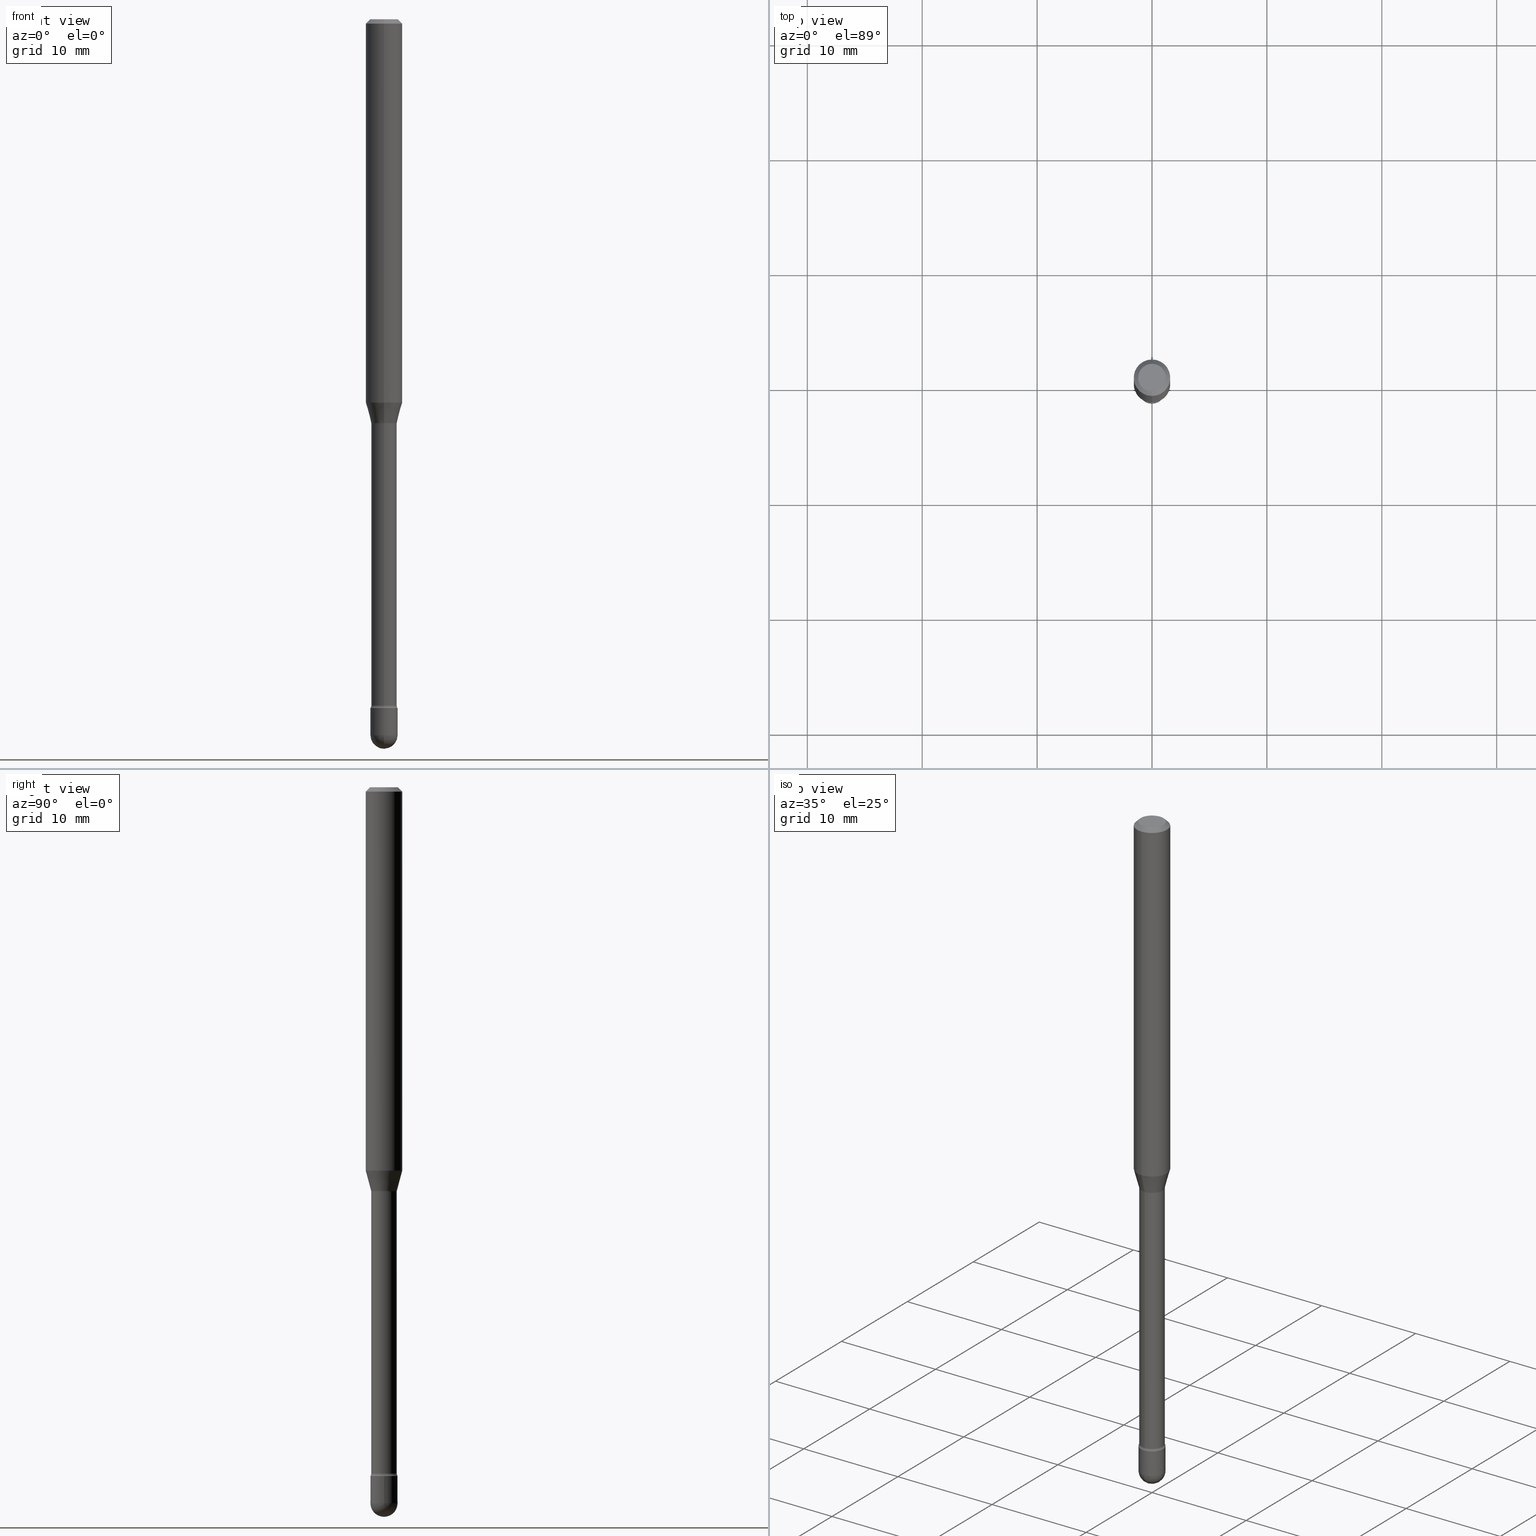
[diagram: canonical four-view strip — front | top / right | iso, engineering-drawing reading convention]
A machine part, canonical four-view strip (front | top / right | iso — engineering-drawing reading convention). The complete STEP part file that produces these views, byte-faithful:
ISO-10303-21;
HEADER;
FILE_DESCRIPTION (( 'STEP AP203' ),
    '1' );
FILE_NAME ('09553.STEP',
    '2024-04-10T00:38:46',
    ( '' ),
    ( '' ),
    'SwSTEP 2.0',
    'SolidWorks 2023',
    '' );
FILE_SCHEMA (( 'CONFIG_CONTROL_DESIGN' ));
ENDSEC;

DATA;
#1 = DIRECTION ( 'NONE',  ( -2.445440307037586333E-29, 3.491522151244508533E-15, 1.000000000000000000 ) ) ;
#2 = APPROVAL_STATUS ( 'not_yet_approved' ) ;
#3 = LINE ( 'NONE', #296, #60 ) ;
#4 = DIRECTION ( 'NONE',  ( -6.982962677686266711E-15, -1.000000000000000000, 3.491522151244508928E-15 ) ) ;
#5 = CARTESIAN_POINT ( 'NONE',  ( -3.087245492643025853E-16, -0.04421111260566880363, -1.382092501787272942 ) ) ;
#6 = DIRECTION ( 'NONE',  ( -2.445468806185136597E-29, 3.491481338843145583E-15, 1.000000000000000000 ) ) ;
#7 = CARTESIAN_POINT ( 'NONE',  ( 5.999957715975233376E-29, -8.566349464851658011E-15, -2.453500000000000014 ) ) ;
#8 = CARTESIAN_POINT ( 'NONE',  ( 3.389358108901824136E-29, -4.839105106536991295E-15, -1.385974787463811086 ) ) ;
#9 = EDGE_CURVE ( 'NONE', #556, #424, #3, .T. ) ;
#10 = FACE_OUTER_BOUND ( 'NONE', #170, .T. ) ;
#11 = AXIS2_PLACEMENT_3D ( 'NONE', #492, #386, #224 ) ;
#12 = APPROVAL_PERSON_ORGANIZATION ( #186, #463, #277 ) ;
#13 = DIMENSIONAL_EXPONENTS ( 1.000000000000000000, 0.000000000000000000, 0.000000000000000000, 0.000000000000000000, 0.000000000000000000, 0.000000000000000000, 0.000000000000000000 ) ;
#14 = CARTESIAN_POINT ( 'NONE',  ( 0.000000000000000000, 0.000000000000000000, 0.000000000000000000 ) ) ;
#15 = DIRECTION ( 'NONE',  ( -2.445440307037586333E-29, 3.491522151244508533E-15, 1.000000000000000000 ) ) ;
#16 = EDGE_CURVE ( 'NONE', #300, #294, #479, .T. ) ;
#17 = ADVANCED_FACE ( 'NONE', ( #306 ), #67, .T. ) ;
#18 = AXIS2_PLACEMENT_3D ( 'NONE', #14, #538, #285 ) ;
#19 = CIRCLE ( 'NONE', #367, 0.04421111260566398110 ) ;
#20 = ADVANCED_FACE ( 'NONE', ( #139 ), #297, .T. ) ;
#21 = DIRECTION ( 'NONE',  ( -6.982962677686265922E-15, -1.000000000000000000, 3.491522151244508533E-15 ) ) ;
#22 = DIRECTION ( 'NONE',  ( 2.445440307037585773E-29, -3.491522151244508533E-15, -1.000000000000000000 ) ) ;
#23 = DIRECTION ( 'NONE',  ( -6.982962677686265133E-15, -1.000000000000000000, 6.179098042681423534E-15 ) ) ;
#24 = CC_DESIGN_PERSON_AND_ORGANIZATION_ASSIGNMENT ( #103, #249, ( #373 ) ) ;
#25 = CARTESIAN_POINT ( 'NONE',  ( 3.204547738278631736E-16, 0.04369999999999193974, -2.351273030308291823 ) ) ;
#26 = CARTESIAN_POINT ( 'NONE',  ( 4.364351673553919652E-16, 0.06249999999999995143, -0.01500000000000030129 ) ) ;
#27 = VERTEX_POINT ( 'NONE', #135 ) ;
#28 = CARTESIAN_POINT ( 'NONE',  ( 4.170885858912370524E-16, 0.05869999999999190449, -2.351273030308291823 ) ) ;
#29 = AXIS2_PLACEMENT_3D ( 'NONE', #339, #503, #171 ) ;
#30 = EDGE_LOOP ( 'NONE', ( #381, #498, #269, #163 ) ) ;
#31 = CARTESIAN_POINT ( 'NONE',  ( 3.668160460556399609E-31, -5.237283226866791643E-17, -0.01500000000000008271 ) ) ;
#32 = SPHERICAL_SURFACE ( 'NONE', #318, 0.04649999999999995109 ) ;
#33 = ORIENTED_EDGE ( 'NONE', *, *, #323, .F. ) ;
#34 = ORIENTED_EDGE ( 'NONE', *, *, #126, .T. ) ;
#35 = CARTESIAN_POINT ( 'NONE',  ( -3.304023721283863841E-16, -0.04650000000000854145, -2.453500000000000014 ) ) ;
#36 = AXIS2_PLACEMENT_3D ( 'NONE', #477, #391, #71 ) ;
#37 = AXIS2_PLACEMENT_3D ( 'NONE', #432, #393, #178 ) ;
#38 = DIRECTION ( 'NONE',  ( -7.105427357601001070E-15, -1.000000000000000000, 0.000000000000000000 ) ) ;
#39 = DIRECTION ( 'NONE',  ( 1.000000000000000000, -6.982962677686267499E-15, 4.876176775795936353E-29 ) ) ;
#40 = FACE_OUTER_BOUND ( 'NONE', #474, .T. ) ;
#41 = DIRECTION ( 'NONE',  ( 6.982962677686265922E-15, 1.000000000000000000, -5.874941921858636379E-15 ) ) ;
#42 = EDGE_LOOP ( 'NONE', ( #337, #226, #412, #462, #34 ) ) ;
#43 = PERSON_AND_ORGANIZATION ( #548, #107 ) ;
#44 = ADVANCED_FACE ( 'NONE', ( #40 ), #147, .F. ) ;
#45 = FACE_OUTER_BOUND ( 'NONE', #541, .T. ) ;
#46 = ADVANCED_BREP_SHAPE_REPRESENTATION ( '09553', ( #162, #360, #221 ), #565 ) ;
#47 = CIRCLE ( 'NONE', #129, 0.01499999999999995955 ) ;
#48 = AXIS2_PLACEMENT_3D ( 'NONE', #167, #301, #76 ) ;
#49 = CARTESIAN_POINT ( 'NONE',  ( 4.440892098500948609E-16, 0.06249999999999544115, -1.313837444817705702 ) ) ;
#50 = DIRECTION ( 'NONE',  ( 1.000000000000000000, -6.982962677686260400E-15, 0.000000000000000000 ) ) ;
#51 = DIRECTION ( 'NONE',  ( -6.982962677686266711E-15, -1.000000000000000000, 0.000000000000000000 ) ) ;
#52 = DATE_AND_TIME ( #236, #286 ) ;
#53 = AXIS2_PLACEMENT_3D ( 'NONE', #545, #461, #102 ) ;
#54 = CC_DESIGN_APPROVAL ( #98, ( #180 ) ) ;
#55 = DIRECTION ( 'NONE',  ( -2.445440307037586333E-29, 3.491522151244508533E-15, 1.000000000000000000 ) ) ;
#56 = EDGE_CURVE ( 'NONE', #97, #382, #315, .T. ) ;
#57 = ORIENTED_EDGE ( 'NONE', *, *, #481, .T. ) ;
#58 = CARTESIAN_POINT ( 'NONE',  ( 3.212911044452487159E-29, -4.587292541715501865E-15, -1.313837444817705258 ) ) ;
#59 = CIRCLE ( 'NONE', #201, 0.04370000000000000273 ) ;
#60 = VECTOR ( 'NONE', #522, 39.37007874015748143 ) ;
#61 = CIRCLE ( 'NONE', #37, 0.01500000000000002720 ) ;
#62 = DIRECTION ( 'NONE',  ( -6.982962677686265922E-15, -1.000000000000000000, 6.251368406554355696E-15 ) ) ;
#63 = VERTEX_POINT ( 'NONE', #397 ) ;
#64 = CARTESIAN_POINT ( 'NONE',  ( 5.749897841166304022E-29, -8.209521868945201254E-15, -2.351273030308291823 ) ) ;
#65 = ORIENTED_EDGE ( 'NONE', *, *, #89, .F. ) ;
#66 = DIRECTION ( 'NONE',  ( -2.445440307037586333E-29, 3.491522151244508533E-15, 1.000000000000000000 ) ) ;
#67 = CONICAL_SURFACE ( 'NONE', #36, 0.06250000000000000000, 0.7853981633974483900 ) ;
#68 = DIRECTION ( 'NONE',  ( -6.982962677686266711E-15, -1.000000000000000000, 3.491522151244508928E-15 ) ) ;
#69 = AXIS2_PLACEMENT_3D ( 'NONE', #409, #374, #549 ) ;
#70 = DIRECTION ( 'NONE',  ( -2.445440307037586333E-29, 3.491522151244508533E-15, 1.000000000000000000 ) ) ;
#71 = DIRECTION ( 'NONE',  ( 6.982962677686265922E-15, 1.000000000000000000, -3.483106191921935554E-15 ) ) ;
#72 = VERTEX_POINT ( 'NONE', #392 ) ;
#73 = DIRECTION ( 'NONE',  ( -2.445468806185136597E-29, 3.491481338843145583E-15, 1.000000000000000000 ) ) ;
#74 = APPLICATION_CONTEXT ( 'configuration controlled 3d designs of mechanical parts and assemblies' ) ;
#75 = ORIENTED_EDGE ( 'NONE', *, *, #443, .T. ) ;
#76 = DIRECTION ( 'NONE',  ( 1.000000000000000000, -6.982962677686280121E-15, 0.000000000000000000 ) ) ;
#77 = EDGE_LOOP ( 'NONE', ( #562, #230, #377, #551 ) ) ;
#78 = ORIENTED_EDGE ( 'NONE', *, *, #122, .T. ) ;
#79 = CARTESIAN_POINT ( 'NONE',  ( 5.999957715975233376E-29, -8.566349464851658011E-15, -2.453500000000000014 ) ) ;
#80 = CIRCLE ( 'NONE', #407, 0.04649999999999999967 ) ;
#81 = COORDINATED_UNIVERSAL_TIME_OFFSET ( 5, 0, .BEHIND. ) ;
#82 = DIRECTION ( 'NONE',  ( 2.445440307037586333E-29, -3.491522151244508533E-15, -1.000000000000000000 ) ) ;
#83 = CC_DESIGN_PERSON_AND_ORGANIZATION_ASSIGNMENT ( #212, #302, ( #539 ) ) ;
#84 = CYLINDRICAL_SURFACE ( 'NONE', #415, 0.06250000000000000000 ) ;
#85 = EDGE_CURVE ( 'NONE', #63, #558, #47, .T. ) ;
#86 =( NAMED_UNIT ( * ) PLANE_ANGLE_UNIT ( ) SI_UNIT ( $, .RADIAN. ) );
#87 = CARTESIAN_POINT ( 'NONE',  ( -3.773273898774340269E-16, -0.04749999999999999362, 8.310220870163345248E-17 ) ) ;
#88 = VERTEX_POINT ( 'NONE', #5 ) ;
#89 = EDGE_CURVE ( 'NONE', #424, #410, #447, .T. ) ;
#90 = DIRECTION ( 'NONE',  ( 1.000000000000000000, -6.982962677686280121E-15, 0.000000000000000000 ) ) ;
#91 = CARTESIAN_POINT ( 'NONE',  ( -3.051554690148559469E-16, -0.04370000000000483914, -1.385974787463810864 ) ) ;
#92 = LINE ( 'NONE', #398, #401 ) ;
#93 = AXIS2_PLACEMENT_3D ( 'NONE', #191, #22, #194 ) ;
#94 = CONICAL_SURFACE ( 'NONE', #203, 0.04421111260566398110, 0.2617993877991501850 ) ;
#95 = ADVANCED_FACE ( 'NONE', ( #10 ), #321, .F. ) ;
#96 = DIRECTION ( 'NONE',  ( -6.982962677686265922E-15, -1.000000000000000000, 4.370956789862821150E-15 ) ) ;
#97 = VERTEX_POINT ( 'NONE', #454 ) ;
#98 = APPROVAL ( #353, 'UNSPECIFIED' ) ;
#99 = VECTOR ( 'NONE', #251, 39.37007874015749564 ) ;
#100 = ORIENTED_EDGE ( 'NONE', *, *, #217, .T. ) ;
#101 = CARTESIAN_POINT ( 'NONE',  ( 3.389318609801855919E-29, -4.839161671496296399E-15, -1.385974787463811086 ) ) ;
#102 = DIRECTION ( 'NONE',  ( -6.982962677686265922E-15, -1.000000000000000000, 3.491522151244508533E-15 ) ) ;
#103 = PERSON_AND_ORGANIZATION ( #548, #107 ) ;
#104 = FACE_OUTER_BOUND ( 'NONE', #471, .T. ) ;
#105 = EDGE_CURVE ( 'NONE', #382, #72, #511, .T. ) ;
#106 = AXIS2_PLACEMENT_3D ( 'NONE', #305, #532, #219 ) ;
#107 = ORGANIZATION ( 'UNSPECIFIED', 'UNSPECIFIED', '' ) ;
#108 = ORIENTED_EDGE ( 'NONE', *, *, #346, .T. ) ;
#109 = DIRECTION ( 'NONE',  ( -1.000000000000000000, 6.982962677686265922E-15, -4.883557194083111780E-29 ) ) ;
#110 = PERSON_AND_ORGANIZATION_ROLE ( 'creator' ) ;
#111 = ORIENTED_EDGE ( 'NONE', *, *, #547, .F. ) ;
#112 = ADVANCED_FACE ( 'NONE', ( #242 ), #372, .T. ) ;
#113 = CARTESIAN_POINT ( 'NONE',  ( 4.440892098500949595E-16, 0.06249999999999995837, -0.01500000000000030129 ) ) ;
#114 = ORIENTED_EDGE ( 'NONE', *, *, #245, .T. ) ;
#115 = ORIENTED_EDGE ( 'NONE', *, *, #330, .F. ) ;
#116 = DATE_AND_TIME ( #307, #514 ) ;
#117 = CARTESIAN_POINT ( 'NONE',  ( 5.999957715975233376E-29, -8.566349464851658011E-15, -2.453500000000000014 ) ) ;
#118 = EDGE_CURVE ( 'NONE', #322, #410, #496, .T. ) ;
#119 = ORIENTED_EDGE ( 'NONE', *, *, #330, .T. ) ;
#120 = FACE_OUTER_BOUND ( 'NONE', #304, .T. ) ;
#121 = VERTEX_POINT ( 'NONE', #146 ) ;
#122 = EDGE_CURVE ( 'NONE', #524, #501, #59, .T. ) ;
#123 = APPROVAL_ROLE ( '' ) ;
#124 = DIRECTION ( 'NONE',  ( -1.000000000000000000, 7.105427357601001070E-15, -4.926315508542082329E-29 ) ) ;
#125 = COORDINATED_UNIVERSAL_TIME_OFFSET ( 5, 0, .BEHIND. ) ;
#126 = EDGE_CURVE ( 'NONE', #322, #255, #405, .T. ) ;
#127 = SPHERICAL_SURFACE ( 'NONE', #383, 0.04649999999999995109 ) ;
#128 = ORIENTED_EDGE ( 'NONE', *, *, #500, .F. ) ;
#129 = AXIS2_PLACEMENT_3D ( 'NONE', #493, #399, #51 ) ;
#130 = TOROIDAL_SURFACE ( 'NONE', #376, 0.05870000000000011320, 0.01499999999999995955 ) ;
#131 = CARTESIAN_POINT ( 'NONE',  ( 5.771306382596922099E-29, -8.239895959669823433E-15, -2.359999999999999876 ) ) ;
#132 = APPROVAL_ROLE ( '' ) ;
#133 = DIRECTION ( 'NONE',  ( -6.982962677686265922E-15, -1.000000000000000000, 3.491522151244509322E-15 ) ) ;
#134 = DIRECTION ( 'NONE',  ( -2.445440307037586333E-29, 3.491522151244508533E-15, 1.000000000000000000 ) ) ;
#135 = CARTESIAN_POINT ( 'NONE',  ( 3.840629472727447874E-16, 0.04749999999999999362, -2.485923956665948360E-16 ) ) ;
#136 = CARTESIAN_POINT ( 'NONE',  ( -1.169113584055446105E-44, 1.669184350826100908E-30, 4.780733988912460139E-16 ) ) ;
#137 = ORIENTED_EDGE ( 'NONE', *, *, #234, .F. ) ;
#138 = CARTESIAN_POINT ( 'NONE',  ( 0.04649999999999999967, -8.727830476773153796E-15, -2.453500000000000014 ) ) ;
#139 = FACE_OUTER_BOUND ( 'NONE', #473, .T. ) ;
#140 = CIRCLE ( 'NONE', #69, 0.06250000000000000000 ) ;
#141 = AXIS2_PLACEMENT_3D ( 'NONE', #64, #459, #62 ) ;
#142 = CIRCLE ( 'NONE', #534, 0.06250000000000000000 ) ;
#143 = APPROVAL_DATE_TIME ( #436, #463 ) ;
#144 = EDGE_CURVE ( 'NONE', #158, #121, #499, .T. ) ;
#145 = VERTEX_POINT ( 'NONE', #563 ) ;
#146 = CARTESIAN_POINT ( 'NONE',  ( 3.304023721285041216E-16, 0.04649999999999173544, -2.360000000000000320 ) ) ;
#147 = TOROIDAL_SURFACE ( 'NONE', #370, 0.05870000000000011320, 0.01499999999999995955 ) ;
#148 = AXIS2_PLACEMENT_3D ( 'NONE', #313, #486, #435 ) ;
#149 = CC_DESIGN_APPROVAL ( #463, ( #373 ) ) ;
#150 = DIRECTION ( 'NONE',  ( -2.445468806185136877E-29, 3.491481338843145188E-15, 1.000000000000000000 ) ) ;
#151 = UNCERTAINTY_MEASURE_WITH_UNIT (LENGTH_MEASURE( 1.000000000000000082E-05 ), #189, 'distance_accuracy_value', 'NONE');
#152 = CARTESIAN_POINT ( 'NONE',  ( 3.247077645124690836E-16, 0.04649999999999176320, -2.360000000000000320 ) ) ;
#153 = PRODUCT_DEFINITION ( 'UNKNOWN', '', #373, #408 ) ;
#154 = DIRECTION ( 'NONE',  ( 6.982962677686265922E-15, 1.000000000000000000, -5.874941921858636379E-15 ) ) ;
#155 = LINE ( 'NONE', #333, #491 ) ;
#156 = ORIENTED_EDGE ( 'NONE', *, *, #437, .T. ) ;
#157 = AXIS2_PLACEMENT_3D ( 'NONE', #254, #215, #502 ) ;
#158 = VERTEX_POINT ( 'NONE', #25 ) ;
#159 = AXIS2_PLACEMENT_3D ( 'NONE', #282, #246, #195 ) ;
#160 = FACE_OUTER_BOUND ( 'NONE', #366, .T. ) ;
#161 = DIRECTION ( 'NONE',  ( 1.000000000000000000, -6.982962677686280121E-15, 0.000000000000000000 ) ) ;
#162 = MANIFOLD_SOLID_BREP ( 'Body-Move/Copy2[1]', #325 ) ;
#163 = ORIENTED_EDGE ( 'NONE', *, *, #553, .F. ) ;
#164 = ORIENTED_EDGE ( 'NONE', *, *, #184, .T. ) ;
#165 = VERTEX_POINT ( 'NONE', #113 ) ;
#166 = AXIS2_PLACEMENT_3D ( 'NONE', #28, #560, #506 ) ;
#167 = CARTESIAN_POINT ( 'NONE',  ( 5.999957715975233376E-29, -8.566349464851658011E-15, -2.453500000000000014 ) ) ;
#168 = AXIS2_PLACEMENT_3D ( 'NONE', #198, #209, #550 ) ;
#169 = CALENDAR_DATE ( 2024, 9, 4 ) ;
#170 = EDGE_LOOP ( 'NONE', ( #100, #119 ) ) ;
#171 = DIRECTION ( 'NONE',  ( -6.982962677686265922E-15, -1.000000000000000000, 4.370956789862821150E-15 ) ) ;
#172 = FACE_OUTER_BOUND ( 'NONE', #42, .T. ) ;
#173 = PERSON_AND_ORGANIZATION ( #548, #107 ) ;
#174 = PERSON_AND_ORGANIZATION ( #548, #107 ) ;
#175 = FACE_OUTER_BOUND ( 'NONE', #422, .T. ) ;
#176 = ORIENTED_EDGE ( 'NONE', *, *, #16, .F. ) ;
#177 = DATE_AND_TIME ( #270, #536 ) ;
#178 = DIRECTION ( 'NONE',  ( 7.105427357601001859E-15, 1.000000000000000000, 0.000000000000000000 ) ) ;
#179 = CIRCLE ( 'NONE', #48, 0.04649999999999999967 ) ;
#180 = SECURITY_CLASSIFICATION ( '', '', #413 ) ;
#181 = PERSON_AND_ORGANIZATION ( #548, #107 ) ;
#182 = LENGTH_MEASURE_WITH_UNIT ( LENGTH_MEASURE( 0.02539999999999999897 ), #237 );
#183 = CARTESIAN_POINT ( 'NONE',  ( 0.000000000000000000, 0.000000000000000000, 0.000000000000000000 ) ) ;
#184 = EDGE_CURVE ( 'NONE', #556, #294, #490, .T. ) ;
#185 = FACE_OUTER_BOUND ( 'NONE', #552, .T. ) ;
#186 = PERSON_AND_ORGANIZATION ( #548, #107 ) ;
#187 = AXIS2_PLACEMENT_3D ( 'NONE', #8, #1, #310 ) ;
#188 = DIRECTION ( 'NONE',  ( -2.445440307037586333E-29, 3.491522151244508533E-15, 1.000000000000000000 ) ) ;
#189 =( CONVERSION_BASED_UNIT ( 'INCH', #182 ) LENGTH_UNIT ( ) NAMED_UNIT ( #13 ) );
#190 = ADVANCED_FACE ( 'NONE', ( #120 ), #32, .T. ) ;
#191 = CARTESIAN_POINT ( 'NONE',  ( 3.316907271900976096E-16, 0.04749999999999999362, 3.181685052026860004E-17 ) ) ;
#192 = CARTESIAN_POINT ( 'NONE',  ( 3.105071755272217326E-16, 0.04369999999999515938, -1.385974787463811309 ) ) ;
#193 = PRODUCT_DEFINITION_SHAPE ( 'NONE', 'NONE',  #153 ) ;
#194 = DIRECTION ( 'NONE',  ( 6.982962677686265922E-15, 1.000000000000000000, -3.491522151244508533E-15 ) ) ;
#195 = DIRECTION ( 'NONE',  ( 1.000000000000000000, -6.982962677686265922E-15, 4.876176775795935793E-29 ) ) ;
#196 = CARTESIAN_POINT ( 'NONE',  ( -3.087245492643025853E-16, -0.04421111260566880363, -1.382092501787272942 ) ) ;
#197 = CARTESIAN_POINT ( 'NONE',  ( 2.023345621273164443E-45, -2.889258381243154427E-31, -8.274509348248068560E-17 ) ) ;
#198 = CARTESIAN_POINT ( 'NONE',  ( -4.098999091801499081E-16, -0.05870000000000484552, -1.385974787463810864 ) ) ;
#199 = ORIENTED_EDGE ( 'NONE', *, *, #352, .T. ) ;
#200 = EDGE_LOOP ( 'NONE', ( #213, #164, #433, #566, #65 ) ) ;
#201 = AXIS2_PLACEMENT_3D ( 'NONE', #101, #55, #404 ) ;
#202 = ORIENTED_EDGE ( 'NONE', *, *, #481, .F. ) ;
#203 = AXIS2_PLACEMENT_3D ( 'NONE', #414, #288, #23 ) ;
#204 = ORIENTED_EDGE ( 'NONE', *, *, #85, .T. ) ;
#205 = VECTOR ( 'NONE', #267, 39.37007874015748143 ) ;
#206 = DIRECTION ( 'NONE',  ( -2.445440307037586333E-29, 3.491522151244508533E-15, 1.000000000000000000 ) ) ;
#207 = DIRECTION ( 'NONE',  ( -2.445440307037586333E-29, 3.491522151244508533E-15, 1.000000000000000000 ) ) ;
#208 = CC_DESIGN_DATE_AND_TIME_ASSIGNMENT ( #518, #264, ( #180 ) ) ;
#209 = DIRECTION ( 'NONE',  ( -1.000000000000000000, 6.982962677686265922E-15, -4.883557194083112901E-29 ) ) ;
#210 = EDGE_CURVE ( 'NONE', #88, #97, #455, .T. ) ;
#211 = ORIENTED_EDGE ( 'NONE', *, *, #122, .F. ) ;
#212 = PERSON_AND_ORGANIZATION ( #548, #107 ) ;
#213 = ORIENTED_EDGE ( 'NONE', *, *, #9, .F. ) ;
#214 = DIRECTION ( 'NONE',  ( -6.982962677686265922E-15, -1.000000000000000000, 3.483106191921935554E-15 ) ) ;
#215 = DIRECTION ( 'NONE',  ( -2.445468806185136597E-29, 3.491481338843145583E-15, 1.000000000000000000 ) ) ;
#216 = ORIENTED_EDGE ( 'NONE', *, *, #16, .T. ) ;
#217 = EDGE_CURVE ( 'NONE', #27, #261, #232, .T. ) ;
#218 = AXIS2_PLACEMENT_3D ( 'NONE', #354, #361, #4 ) ;
#219 = DIRECTION ( 'NONE',  ( -6.982962677686265922E-15, -1.000000000000000000, 3.491522151244509322E-15 ) ) ;
#220 = LOCAL_TIME ( 20, 38, 46.00000000000000000, #238 ) ;
#221 = AXIS2_PLACEMENT_3D ( 'NONE', #390, #387, #484 ) ;
#222 = APPROVAL ( #2, 'UNSPECIFIED' ) ;
#223 = DIRECTION ( 'NONE',  ( 6.982962677686265133E-15, 1.000000000000000000, 0.000000000000000000 ) ) ;
#224 = DIRECTION ( 'NONE',  ( -6.982962677686266711E-15, -1.000000000000000000, 5.874941921858630857E-15 ) ) ;
#225 = CARTESIAN_POINT ( 'NONE',  ( 6.115660277085183893E-29, -8.725856043299847054E-15, -2.500000000000000000 ) ) ;
#226 = ORIENTED_EDGE ( 'NONE', *, *, #9, .T. ) ;
#227 = PERSON_AND_ORGANIZATION_ROLE ( 'creator' ) ;
#228 = EDGE_CURVE ( 'NONE', #255, #556, #179, .T. ) ;
#229 = CARTESIAN_POINT ( 'NONE',  ( 0.04649999999999999967, -8.564603724182234141E-15, -2.359999999999999876 ) ) ;
#230 = ORIENTED_EDGE ( 'NONE', *, *, #144, .T. ) ;
#231 = CC_DESIGN_DATE_AND_TIME_ASSIGNMENT ( #52, #244, ( #153 ) ) ;
#232 = CIRCLE ( 'NONE', #526, 0.04749999999999999362 ) ;
#233 = DIRECTION ( 'NONE',  ( 1.839019923739599526E-15, 0.2588190451025248473, 0.9659258262890670910 ) ) ;
#234 = EDGE_CURVE ( 'NONE', #63, #158, #334, .T. ) ;
#235 = DIRECTION ( 'NONE',  ( -6.982962677686265922E-15, -1.000000000000000000, 3.491522151244508533E-15 ) ) ;
#236 = CALENDAR_DATE ( 2024, 9, 4 ) ;
#237 =( LENGTH_UNIT ( ) NAMED_UNIT ( * ) SI_UNIT ( $, .METRE. ) );
#238 = COORDINATED_UNIVERSAL_TIME_OFFSET ( 5, 0, .BEHIND. ) ;
#239 = DIRECTION ( 'NONE',  ( 6.982962677686265922E-15, 1.000000000000000000, -3.483106191921935554E-15 ) ) ;
#240 = EDGE_CURVE ( 'NONE', #145, #165, #140, .T. ) ;
#241 = CIRCLE ( 'NONE', #11, 0.04649999999999999967 ) ;
#242 = FACE_OUTER_BOUND ( 'NONE', #200, .T. ) ;
#243 = ADVANCED_FACE ( 'NONE', ( #316 ), #395, .F. ) ;
#244 = DATE_TIME_ROLE ( 'creation_date' ) ;
#245 = EDGE_CURVE ( 'NONE', #63, #501, #396, .T. ) ;
#246 = DIRECTION ( 'NONE',  ( -2.438088387897960049E-29, 3.491481338843145188E-15, 1.000000000000000000 ) ) ;
#247 = AXIS2_PLACEMENT_3D ( 'NONE', #136, #134, #235 ) ;
#248 = CARTESIAN_POINT ( 'NONE',  ( 5.999957715975233376E-29, -8.566349464851658011E-15, -2.453500000000000014 ) ) ;
#249 = PERSON_AND_ORGANIZATION_ROLE ( 'design_supplier' ) ;
#250 = DIRECTION ( 'NONE',  ( 1.000000000000000000, -6.982962677686265922E-15, 4.883557194083112340E-29 ) ) ;
#251 = DIRECTION ( 'NONE',  ( -1.807323732225329350E-15, -0.2588190451025180194, 0.9659258262890689783 ) ) ;
#252 = ORIENTED_EDGE ( 'NONE', *, *, #217, .F. ) ;
#253 = ADVANCED_FACE ( 'NONE', ( #45 ), #482, .T. ) ;
#254 = CARTESIAN_POINT ( 'NONE',  ( 5.999957715975233376E-29, -8.566349464851658011E-15, -2.453500000000000014 ) ) ;
#255 = VERTEX_POINT ( 'NONE', #263 ) ;
#256 = AXIS2_PLACEMENT_3D ( 'NONE', #183, #388, #39 ) ;
#257 = CARTESIAN_POINT ( 'NONE',  ( -4.364351673553916201E-16, -0.06250000000000000000, 6.962935333440278959E-16 ) ) ;
#258 = CARTESIAN_POINT ( 'NONE',  ( 5.749897841166304022E-29, -8.209521868945201254E-15, -2.351273030308291823 ) ) ;
#259 = ORIENTED_EDGE ( 'NONE', *, *, #418, .T. ) ;
#260 = ORIENTED_EDGE ( 'NONE', *, *, #105, .T. ) ;
#261 = VERTEX_POINT ( 'NONE', #87 ) ;
#262 = CARTESIAN_POINT ( 'NONE',  ( -1.169113584055446105E-44, 1.669184350826100908E-30, 4.780733988912460139E-16 ) ) ;
#263 = CARTESIAN_POINT ( 'NONE',  ( 3.247077645124712036E-16, 0.04649999999999141626, -2.453500000000000458 ) ) ;
#264 = DATE_TIME_ROLE ( 'classification_date' ) ;
#265 = ORIENTED_EDGE ( 'NONE', *, *, #438, .F. ) ;
#266 = VECTOR ( 'NONE', #233, 39.37007874015748143 ) ;
#267 = DIRECTION ( 'NONE',  ( -2.445440307037586053E-29, 3.491522151244508533E-15, 1.000000000000000000 ) ) ;
#268 = AXIS2_PLACEMENT_3D ( 'NONE', #276, #317, #431 ) ;
#269 = ORIENTED_EDGE ( 'NONE', *, *, #240, .F. ) ;
#270 = CALENDAR_DATE ( 2024, 9, 4 ) ;
#271 = APPROVAL_DATE_TIME ( #116, #98 ) ;
#272 = DIRECTION ( 'NONE',  ( -1.000000000000000000, 6.982962677686265922E-15, -4.883557194083111780E-29 ) ) ;
#273 = ORIENTED_EDGE ( 'NONE', *, *, #497, .T. ) ;
#274 = APPROVAL_DATE_TIME ( #177, #222 ) ;
#275 = ADVANCED_FACE ( 'NONE', ( #351 ), #439, .T. ) ;
#276 = CARTESIAN_POINT ( 'NONE',  ( 3.379824711925015009E-29, -4.825606585059204561E-15, -1.382092501787273164 ) ) ;
#277 = APPROVAL_ROLE ( '' ) ;
#278 = DIRECTION ( 'NONE',  ( -2.445440307037586053E-29, 3.491522151244508533E-15, 1.000000000000000000 ) ) ;
#279 = CIRCLE ( 'NONE', #148, 0.04649999999999999967 ) ;
#280 = CARTESIAN_POINT ( 'NONE',  ( 3.668160460556399609E-31, -5.237283226866791643E-17, -0.01500000000000008271 ) ) ;
#281 = PLANE ( 'NONE',  #309 ) ;
#282 = CARTESIAN_POINT ( 'NONE',  ( 5.771306382596922099E-29, -8.239895959669823433E-15, -2.359999999999999876 ) ) ;
#283 = CLOSED_SHELL ( 'NONE', ( #451, #543, #452, #20, #504, #469, #275, #253, #17, #95, #448, #44, #356, #243 ) ) ;
#284 = CIRCLE ( 'NONE', #29, 0.06250000000000000000 ) ;
#285 = DIRECTION ( 'NONE',  ( 1.000000000000000000, -6.982962677686267499E-15, 4.876176775795936353E-29 ) ) ;
#286 = LOCAL_TIME ( 20, 38, 46.00000000000000000, #394 ) ;
#287 = DIRECTION ( 'NONE',  ( -6.982962677686265133E-15, -1.000000000000000000, 6.179098042681423534E-15 ) ) ;
#288 = DIRECTION ( 'NONE',  ( -2.445440307037586333E-29, 3.491522151244508533E-15, 1.000000000000000000 ) ) ;
#289 = AXIS2_PLACEMENT_3D ( 'NONE', #117, #295, #161 ) ;
#290 = APPROVAL_PERSON_ORGANIZATION ( #174, #98, #132 ) ;
#291 = DIRECTION ( 'NONE',  ( -4.851104656540964275E-15, -0.7071067811865500152, -0.7071067811865450192 ) ) ;
#292 = ORIENTED_EDGE ( 'NONE', *, *, #234, .T. ) ;
#293 = DIRECTION ( 'NONE',  ( -6.982962677686265133E-15, -1.000000000000000000, 6.179098042681423534E-15 ) ) ;
#294 = VERTEX_POINT ( 'NONE', #35 ) ;
#295 = DIRECTION ( 'NONE',  ( -2.445468806185136597E-29, 3.491481338843145583E-15, 1.000000000000000000 ) ) ;
#296 = CARTESIAN_POINT ( 'NONE',  ( -0.04649999999999999967, 3.304023721284465841E-16, -2.287304816968531530E-30 ) ) ;
#297 = CONICAL_SURFACE ( 'NONE', #344, 0.06250000000000000000, 0.7853981633974483900 ) ;
#298 = EDGE_LOOP ( 'NONE', ( #483, #156, #508, #329 ) ) ;
#299 = AXIS2_PLACEMENT_3D ( 'NONE', #338, #207, #293 ) ;
#300 = VERTEX_POINT ( 'NONE', #225 ) ;
#301 = DIRECTION ( 'NONE',  ( -2.445468806185136597E-29, 3.491481338843145583E-15, 1.000000000000000000 ) ) ;
#302 = PERSON_AND_ORGANIZATION_ROLE ( 'design_owner' ) ;
#303 = ORIENTED_EDGE ( 'NONE', *, *, #438, .T. ) ;
#304 = EDGE_LOOP ( 'NONE', ( #176, #303, #505, #460 ) ) ;
#305 = CARTESIAN_POINT ( 'NONE',  ( -1.169113584055446105E-44, 1.669184350826100908E-30, 4.780733988912460139E-16 ) ) ;
#306 = FACE_OUTER_BOUND ( 'NONE', #378, .T. ) ;
#307 = CALENDAR_DATE ( 2024, 9, 4 ) ;
#308 = DIRECTION ( 'NONE',  ( -2.445440307037586053E-29, 3.491522151244508533E-15, 1.000000000000000000 ) ) ;
#309 = AXIS2_PLACEMENT_3D ( 'NONE', #152, #557, #331 ) ;
#310 = DIRECTION ( 'NONE',  ( -6.982962677686265922E-15, -1.000000000000000000, 3.491522151244508533E-15 ) ) ;
#311 = ORIENTED_EDGE ( 'NONE', *, *, #478, .F. ) ;
#312 = CC_DESIGN_PERSON_AND_ORGANIZATION_ASSIGNMENT ( #43, #227, ( #153 ) ) ;
#313 = CARTESIAN_POINT ( 'NONE',  ( 5.771239124608703669E-29, -8.239992276937040454E-15, -2.359999999999999876 ) ) ;
#314 = CALENDAR_DATE ( 2024, 9, 4 ) ;
#315 = LINE ( 'NONE', #368, #266 ) ;
#316 = FACE_OUTER_BOUND ( 'NONE', #341, .T. ) ;
#317 = DIRECTION ( 'NONE',  ( -2.445440307037586333E-29, 3.491522151244508533E-15, 1.000000000000000000 ) ) ;
#318 = AXIS2_PLACEMENT_3D ( 'NONE', #472, #109, #154 ) ;
#319 = PERSON_AND_ORGANIZATION ( #548, #107 ) ;
#320 = EDGE_LOOP ( 'NONE', ( #335, #199, #78, #311 ) ) ;
#321 = PLANE ( 'NONE',  #93 ) ;
#322 = VERTEX_POINT ( 'NONE', #138 ) ;
#323 = EDGE_CURVE ( 'NONE', #121, #558, #241, .T. ) ;
#324 = EDGE_CURVE ( 'NONE', #294, #322, #80, .T. ) ;
#325 = CLOSED_SHELL ( 'NONE', ( #328, #332, #427, #190, #112 ) ) ;
#326 = APPLICATION_PROTOCOL_DEFINITION ( 'international standard', 'config_control_design', 1994, #421 ) ;
#327 = CC_DESIGN_APPROVAL ( #222, ( #153 ) ) ;
#328 = ADVANCED_FACE ( 'NONE', ( #172 ), #476, .T. ) ;
#329 = ORIENTED_EDGE ( 'NONE', *, *, #105, .F. ) ;
#330 = EDGE_CURVE ( 'NONE', #261, #27, #371, .T. ) ;
#331 = DIRECTION ( 'NONE',  ( -6.982962677686265922E-15, -1.000000000000000000, 3.491522151244508533E-15 ) ) ;
#332 = ADVANCED_FACE ( 'NONE', ( #175 ), #127, .T. ) ;
#333 = CARTESIAN_POINT ( 'NONE',  ( -4.287811248607203282E-16, -0.06250000000000005551, -0.01499999999999986587 ) ) ;
#334 = CIRCLE ( 'NONE', #564, 0.04370000000000015539 ) ;
#335 = ORIENTED_EDGE ( 'NONE', *, *, #437, .F. ) ;
#336 = ORIENTED_EDGE ( 'NONE', *, *, #240, .T. ) ;
#337 = ORIENTED_EDGE ( 'NONE', *, *, #228, .T. ) ;
#338 = CARTESIAN_POINT ( 'NONE',  ( 3.379824711925015009E-29, -4.825606585059204561E-15, -1.382092501787273164 ) ) ;
#339 = CARTESIAN_POINT ( 'NONE',  ( 3.212911044452487159E-29, -4.587292541715501865E-15, -1.313837444817705258 ) ) ;
#340 = ORIENTED_EDGE ( 'NONE', *, *, #369, .T. ) ;
#341 = EDGE_LOOP ( 'NONE', ( #561, #507, #537, #108 ) ) ;
#342 = ORIENTED_EDGE ( 'NONE', *, *, #245, .F. ) ;
#343 = CARTESIAN_POINT ( 'NONE',  ( 5.771306382596922099E-29, -8.239895959669823433E-15, -2.359999999999999876 ) ) ;
#344 = AXIS2_PLACEMENT_3D ( 'NONE', #280, #82, #239 ) ;
#345 = ORIENTED_EDGE ( 'NONE', *, *, #546, .T. ) ;
#346 = EDGE_CURVE ( 'NONE', #501, #524, #512, .T. ) ;
#347 = CIRCLE ( 'NONE', #554, 0.04649999999999999967 ) ;
#348 = FACE_OUTER_BOUND ( 'NONE', #30, .T. ) ;
#349 = LOCAL_TIME ( 20, 38, 46.00000000000000000, #513 ) ;
#350 = ORIENTED_EDGE ( 'NONE', *, *, #418, .F. ) ;
#351 = FACE_OUTER_BOUND ( 'NONE', #298, .T. ) ;
#352 = EDGE_CURVE ( 'NONE', #97, #524, #61, .T. ) ;
#353 = APPROVAL_STATUS ( 'not_yet_approved' ) ;
#354 = CARTESIAN_POINT ( 'NONE',  ( 2.023345621273164443E-45, -2.889258381243154427E-31, -8.274509348248068560E-17 ) ) ;
#355 = CARTESIAN_POINT ( 'NONE',  ( 5.749964850443326902E-29, -8.209425907846575104E-15, -2.351273030308291823 ) ) ;
#356 = ADVANCED_FACE ( 'NONE', ( #358 ), #527, .T. ) ;
#357 = SHAPE_DEFINITION_REPRESENTATION ( #193, #46 ) ;
#358 = FACE_OUTER_BOUND ( 'NONE', #515, .T. ) ;
#359 = ORIENTED_EDGE ( 'NONE', *, *, #144, .F. ) ;
#360 = MANIFOLD_SOLID_BREP ( 'Body-Move/Copy2[2]', #283 ) ;
#361 = DIRECTION ( 'NONE',  ( -2.445440307037586333E-29, 3.491522151244508533E-15, 1.000000000000000000 ) ) ;
#362 = DIRECTION ( 'NONE',  ( 1.000000000000000000, -6.982962677686260400E-15, 0.000000000000000000 ) ) ;
#363 = PLANE ( 'NONE',  #159 ) ;
#364 = FACE_OUTER_BOUND ( 'NONE', #389, .T. ) ;
#365 = AXIS2_PLACEMENT_3D ( 'NONE', #131, #525, #362 ) ;
#366 = EDGE_LOOP ( 'NONE', ( #292, #259, #416, #342 ) ) ;
#367 = AXIS2_PLACEMENT_3D ( 'NONE', #444, #403, #287 ) ;
#368 = CARTESIAN_POINT ( 'NONE',  ( 3.141388490182970891E-16, 0.04421111260565915857, -1.382092501787273386 ) ) ;
#369 = EDGE_CURVE ( 'NONE', #558, #121, #279, .T. ) ;
#370 = AXIS2_PLACEMENT_3D ( 'NONE', #355, #188, #442 ) ;
#371 = CIRCLE ( 'NONE', #218, 0.04749999999999999362 ) ;
#372 = CYLINDRICAL_SURFACE ( 'NONE', #18, 0.04649999999999999967 ) ;
#373 = PRODUCT_DEFINITION_FORMATION_WITH_SPECIFIED_SOURCE ( 'ANY', '', #539, .NOT_KNOWN. ) ;
#374 = DIRECTION ( 'NONE',  ( -2.445440307037586333E-29, 3.491522151244508533E-15, 1.000000000000000000 ) ) ;
#375 = ORIENTED_EDGE ( 'NONE', *, *, #494, .T. ) ;
#376 = AXIS2_PLACEMENT_3D ( 'NONE', #406, #70, #21 ) ;
#377 = ORIENTED_EDGE ( 'NONE', *, *, #323, .T. ) ;
#378 = EDGE_LOOP ( 'NONE', ( #202, #252, #273, #345 ) ) ;
#379 = DIRECTION ( 'NONE',  ( -2.445440307037586333E-29, 3.491522151244508533E-15, 1.000000000000000000 ) ) ;
#380 = APPLICATION_PROTOCOL_DEFINITION ( 'international standard', 'config_control_design', 1994, #74 ) ;
#381 = ORIENTED_EDGE ( 'NONE', *, *, #500, .T. ) ;
#382 = VERTEX_POINT ( 'NONE', #49 ) ;
#383 = AXIS2_PLACEMENT_3D ( 'NONE', #79, #272, #41 ) ;
#384 = ORIENTED_EDGE ( 'NONE', *, *, #89, .T. ) ;
#385 = AXIS2_PLACEMENT_3D ( 'NONE', #464, #66, #520 ) ;
#386 = DIRECTION ( 'NONE',  ( -2.445440307037586333E-29, 3.491522151244508533E-15, 1.000000000000000000 ) ) ;
#387 = DIRECTION ( 'NONE',  ( 0.000000000000000000, 0.000000000000000000, 1.000000000000000000 ) ) ;
#388 = DIRECTION ( 'NONE',  ( -2.445468806185136597E-29, 3.491481338843145583E-15, 1.000000000000000000 ) ) ;
#389 = EDGE_LOOP ( 'NONE', ( #528, #33 ) ) ;
#390 = CARTESIAN_POINT ( 'NONE',  ( 0.000000000000000000, 0.000000000000000000, 0.000000000000000000 ) ) ;
#391 = DIRECTION ( 'NONE',  ( 2.445440307037586333E-29, -3.491522151244508533E-15, -1.000000000000000000 ) ) ;
#392 = CARTESIAN_POINT ( 'NONE',  ( -4.364351673553592768E-16, -0.06250000000000455191, -1.313837444817705036 ) ) ;
#393 = DIRECTION ( 'NONE',  ( 1.000000000000000000, -7.105427357601001070E-15, 4.926316008349849436E-29 ) ) ;
#394 = COORDINATED_UNIVERSAL_TIME_OFFSET ( 5, 0, .BEHIND. ) ;
#395 = TOROIDAL_SURFACE ( 'NONE', #187, 0.05870000000000000218, 0.01500000000000002720 ) ;
#396 = LINE ( 'NONE', #521, #428 ) ;
#397 = CARTESIAN_POINT ( 'NONE',  ( -3.051554690148333657E-16, -0.04370000000000836410, -2.351273030308291379 ) ) ;
#398 = CARTESIAN_POINT ( 'NONE',  ( 3.105071755271642937E-16, 0.04370000000000007906, 3.254938808818607835E-16 ) ) ;
#399 = DIRECTION ( 'NONE',  ( -1.000000000000000000, 6.982962677686265922E-15, -4.883557194083112901E-29 ) ) ;
#400 = AXIS2_PLACEMENT_3D ( 'NONE', #58, #15, #96 ) ;
#401 = VECTOR ( 'NONE', #278, 39.37007874015748143 ) ;
#402 = APPROVAL_PERSON_ORGANIZATION ( #173, #222, #123 ) ;
#403 = DIRECTION ( 'NONE',  ( -2.445440307037586333E-29, 3.491522151244508533E-15, 1.000000000000000000 ) ) ;
#404 = DIRECTION ( 'NONE',  ( -6.982962677686266711E-15, -1.000000000000000000, 6.251368406554377784E-15 ) ) ;
#405 = CIRCLE ( 'NONE', #157, 0.04649999999999999967 ) ;
#406 = CARTESIAN_POINT ( 'NONE',  ( 5.749964850443326902E-29, -8.209425907846575104E-15, -2.351273030308291823 ) ) ;
#407 = AXIS2_PLACEMENT_3D ( 'NONE', #7, #6, #90 ) ;
#408 = DESIGN_CONTEXT ( 'detailed design', #74, 'design' ) ;
#409 = CARTESIAN_POINT ( 'NONE',  ( 3.668160460556399609E-31, -5.237283226866791643E-17, -0.01500000000000008271 ) ) ;
#410 = VERTEX_POINT ( 'NONE', #229 ) ;
#411 = LINE ( 'NONE', #26, #456 ) ;
#412 = ORIENTED_EDGE ( 'NONE', *, *, #443, .F. ) ;
#413 = SECURITY_CLASSIFICATION_LEVEL ( 'unclassified' ) ;
#414 = CARTESIAN_POINT ( 'NONE',  ( 3.379824711925015009E-29, -4.825606585059204561E-15, -1.382092501787273164 ) ) ;
#415 = AXIS2_PLACEMENT_3D ( 'NONE', #262, #485, #133 ) ;
#416 = ORIENTED_EDGE ( 'NONE', *, *, #346, .F. ) ;
#417 = CARTESIAN_POINT ( 'NONE',  ( -3.247077645123535647E-16, -0.04650000000000822226, -2.359999999999999876 ) ) ;
#418 = EDGE_CURVE ( 'NONE', #158, #524, #92, .T. ) ;
#419 = PERSON_AND_ORGANIZATION_ROLE ( 'classification_officer' ) ;
#420 = ORIENTED_EDGE ( 'NONE', *, *, #56, .T. ) ;
#421 = APPLICATION_CONTEXT ( 'configuration controlled 3d designs of mechanical parts and assemblies' ) ;
#422 = EDGE_LOOP ( 'NONE', ( #265, #216, #489, #446 ) ) ;
#423 = DIRECTION ( 'NONE',  ( -2.445440307037586053E-29, 3.491522151244508533E-15, 1.000000000000000000 ) ) ;
#424 = VERTEX_POINT ( 'NONE', #440 ) ;
#425 = ORIENTED_EDGE ( 'NONE', *, *, #497, .F. ) ;
#426 = VECTOR ( 'NONE', #150, 39.37007874015748143 ) ;
#427 = ADVANCED_FACE ( 'NONE', ( #185 ), #363, .T. ) ;
#428 = VECTOR ( 'NONE', #423, 39.37007874015748143 ) ;
#429 = ORIENTED_EDGE ( 'NONE', *, *, #546, .F. ) ;
#430 = LINE ( 'NONE', #257, #457 ) ;
#431 = DIRECTION ( 'NONE',  ( -6.982962677686265133E-15, -1.000000000000000000, 6.179098042681423534E-15 ) ) ;
#432 = CARTESIAN_POINT ( 'NONE',  ( 4.170885858912126963E-16, 0.05869999999999516577, -1.385974787463811309 ) ) ;
#433 = ORIENTED_EDGE ( 'NONE', *, *, #324, .T. ) ;
#434 = MECHANICAL_CONTEXT ( 'NONE', #421, 'mechanical' ) ;
#435 = DIRECTION ( 'NONE',  ( -6.982962677686266711E-15, -1.000000000000000000, 5.874941921858630857E-15 ) ) ;
#436 = DATE_AND_TIME ( #314, #220 ) ;
#437 = EDGE_CURVE ( 'NONE', #97, #88, #19, .T. ) ;
#438 = EDGE_CURVE ( 'NONE', #300, #255, #468, .T. ) ;
#439 = CONICAL_SURFACE ( 'NONE', #268, 0.04421111260566398110, 0.2617993877991501850 ) ;
#440 = CARTESIAN_POINT ( 'NONE',  ( -0.04649999999999999967, -8.072720340132295025E-15, -2.359999999999999876 ) ) ;
#441 = CC_DESIGN_PERSON_AND_ORGANIZATION_ASSIGNMENT ( #181, #419, ( #180 ) ) ;
#442 = DIRECTION ( 'NONE',  ( -6.982962677686265922E-15, -1.000000000000000000, 3.491522151244508533E-15 ) ) ;
#443 = EDGE_CURVE ( 'NONE', #410, #424, #347, .T. ) ;
#444 = CARTESIAN_POINT ( 'NONE',  ( 3.379824711925015009E-29, -4.825606585059204561E-15, -1.382092501787273164 ) ) ;
#445 = PRODUCT_RELATED_PRODUCT_CATEGORY ( 'detail', '', ( #539 ) ) ;
#446 = ORIENTED_EDGE ( 'NONE', *, *, #228, .F. ) ;
#447 = CIRCLE ( 'NONE', #365, 0.04649999999999999967 ) ;
#448 = ADVANCED_FACE ( 'NONE', ( #364 ), #281, .F. ) ;
#449 = CIRCLE ( 'NONE', #141, 0.04370000000000015539 ) ;
#450 = CARTESIAN_POINT ( 'NONE',  ( 0.04649999999999999967, -3.247077645124114474E-16, 2.267422200745110326E-30 ) ) ;
#451 = ADVANCED_FACE ( 'NONE', ( #466 ), #542, .F. ) ;
#452 = ADVANCED_FACE ( 'NONE', ( #453 ), #130, .F. ) ;
#453 = FACE_OUTER_BOUND ( 'NONE', #77, .T. ) ;
#454 = CARTESIAN_POINT ( 'NONE',  ( 3.791140294341959010E-16, 0.04421111260565915857, -1.382092501787273386 ) ) ;
#455 = CIRCLE ( 'NONE', #299, 0.04421111260566398110 ) ;
#456 = VECTOR ( 'NONE', #555, 39.37007874015748143 ) ;
#457 = VECTOR ( 'NONE', #308, 39.37007874015748143 ) ;
#458 = LINE ( 'NONE', #196, #99 ) ;
#459 = DIRECTION ( 'NONE',  ( -2.445440307037586333E-29, 3.491522151244508533E-15, 1.000000000000000000 ) ) ;
#460 = ORIENTED_EDGE ( 'NONE', *, *, #324, .F. ) ;
#461 = DIRECTION ( 'NONE',  ( -2.445440307037586333E-29, 3.491522151244508533E-15, 1.000000000000000000 ) ) ;
#462 = ORIENTED_EDGE ( 'NONE', *, *, #118, .F. ) ;
#463 = APPROVAL ( #529, 'UNSPECIFIED' ) ;
#464 = CARTESIAN_POINT ( 'NONE',  ( -1.169113584055446105E-44, 1.669184350826100908E-30, 4.780733988912460139E-16 ) ) ;
#465 = DIRECTION ( 'NONE',  ( -2.445440307037586333E-29, 3.491522151244508533E-15, 1.000000000000000000 ) ) ;
#466 = FACE_OUTER_BOUND ( 'NONE', #320, .T. ) ;
#467 = CARTESIAN_POINT ( 'NONE',  ( 5.999957715975233376E-29, -8.566349464851658011E-15, -2.453500000000000014 ) ) ;
#468 = CIRCLE ( 'NONE', #480, 0.04649999999999995109 ) ;
#469 = ADVANCED_FACE ( 'NONE', ( #104 ), #94, .T. ) ;
#470 = ORIENTED_EDGE ( 'NONE', *, *, #509, .F. ) ;
#471 = EDGE_LOOP ( 'NONE', ( #519, #420, #128, #470 ) ) ;
#472 = CARTESIAN_POINT ( 'NONE',  ( 5.999957715975233376E-29, -8.566349464851658011E-15, -2.453500000000000014 ) ) ;
#473 = EDGE_LOOP ( 'NONE', ( #115, #57, #336, #425 ) ) ;
#474 = EDGE_LOOP ( 'NONE', ( #359, #137, #204, #340 ) ) ;
#475 = CARTESIAN_POINT ( 'NONE',  ( 4.440892098500625669E-16, 0.06250000000000000000, 2.598532644384642799E-16 ) ) ;
#476 = CYLINDRICAL_SURFACE ( 'NONE', #256, 0.04649999999999999967 ) ;
#477 = CARTESIAN_POINT ( 'NONE',  ( 3.668160460556399609E-31, -5.237283226866791643E-17, -0.01500000000000008271 ) ) ;
#478 = EDGE_CURVE ( 'NONE', #88, #501, #495, .T. ) ;
#479 = CIRCLE ( 'NONE', #540, 0.04649999999999995109 ) ;
#480 = AXIS2_PLACEMENT_3D ( 'NONE', #248, #250, #223 ) ;
#481 = EDGE_CURVE ( 'NONE', #261, #145, #155, .T. ) ;
#482 = CYLINDRICAL_SURFACE ( 'NONE', #106, 0.06250000000000000000 ) ;
#483 = ORIENTED_EDGE ( 'NONE', *, *, #56, .F. ) ;
#484 = DIRECTION ( 'NONE',  ( 1.000000000000000000, 0.000000000000000000, 0.000000000000000000 ) ) ;
#485 = DIRECTION ( 'NONE',  ( -2.445440307037586333E-29, 3.491522151244508533E-15, 1.000000000000000000 ) ) ;
#486 = DIRECTION ( 'NONE',  ( -2.445440307037586333E-29, 3.491522151244508533E-15, 1.000000000000000000 ) ) ;
#487 = ORIENTED_EDGE ( 'NONE', *, *, #553, .T. ) ;
#488 = DIRECTION ( 'NONE',  ( -2.445440307037586333E-29, 3.491522151244508533E-15, 1.000000000000000000 ) ) ;
#489 = ORIENTED_EDGE ( 'NONE', *, *, #184, .F. ) ;
#490 = CIRCLE ( 'NONE', #289, 0.04649999999999999967 ) ;
#491 = VECTOR ( 'NONE', #291, 39.37007874015748143 ) ;
#492 = CARTESIAN_POINT ( 'NONE',  ( 5.771239124608703669E-29, -8.239992276937040454E-15, -2.359999999999999876 ) ) ;
#493 = CARTESIAN_POINT ( 'NONE',  ( -4.098999091801270804E-16, -0.05870000000000832885, -2.351273030308291379 ) ) ;
#494 = EDGE_CURVE ( 'NONE', #158, #63, #449, .T. ) ;
#495 = CIRCLE ( 'NONE', #168, 0.01500000000000002720 ) ;
#496 = LINE ( 'NONE', #450, #426 ) ;
#497 = EDGE_CURVE ( 'NONE', #27, #165, #411, .T. ) ;
#498 = ORIENTED_EDGE ( 'NONE', *, *, #547, .T. ) ;
#499 = CIRCLE ( 'NONE', #166, 0.01499999999999995955 ) ;
#500 = EDGE_CURVE ( 'NONE', #72, #382, #284, .T. ) ;
#501 = VERTEX_POINT ( 'NONE', #91 ) ;
#502 = DIRECTION ( 'NONE',  ( 1.000000000000000000, -6.982962677686280121E-15, 0.000000000000000000 ) ) ;
#503 = DIRECTION ( 'NONE',  ( -2.445440307037586333E-29, 3.491522151244508533E-15, 1.000000000000000000 ) ) ;
#504 = ADVANCED_FACE ( 'NONE', ( #348 ), #84, .T. ) ;
#505 = ORIENTED_EDGE ( 'NONE', *, *, #126, .F. ) ;
#506 = DIRECTION ( 'NONE',  ( 7.105427357601001859E-15, 1.000000000000000000, 0.000000000000000000 ) ) ;
#507 = ORIENTED_EDGE ( 'NONE', *, *, #210, .F. ) ;
#508 = ORIENTED_EDGE ( 'NONE', *, *, #509, .T. ) ;
#509 = EDGE_CURVE ( 'NONE', #88, #72, #458, .T. ) ;
#510 = CYLINDRICAL_SURFACE ( 'NONE', #385, 0.04370000000000007906 ) ;
#511 = CIRCLE ( 'NONE', #400, 0.06250000000000000000 ) ;
#512 = CIRCLE ( 'NONE', #533, 0.04370000000000000273 ) ;
#513 = COORDINATED_UNIVERSAL_TIME_OFFSET ( 5, 0, .BEHIND. ) ;
#514 = LOCAL_TIME ( 20, 38, 46.00000000000000000, #125 ) ;
#515 = EDGE_LOOP ( 'NONE', ( #350, #375, #114, #211 ) ) ;
#516 = CARTESIAN_POINT ( 'NONE',  ( -0.04649999999999999967, -8.072720340132295025E-15, -2.453500000000000014 ) ) ;
#517 = DIRECTION ( 'NONE',  ( -6.982962677686265922E-15, -1.000000000000000000, 6.251368406554355696E-15 ) ) ;
#518 = DATE_AND_TIME ( #169, #349 ) ;
#519 = ORIENTED_EDGE ( 'NONE', *, *, #210, .T. ) ;
#520 = DIRECTION ( 'NONE',  ( -6.982962677686265922E-15, -1.000000000000000000, 3.491522151244508533E-15 ) ) ;
#521 = CARTESIAN_POINT ( 'NONE',  ( -3.051554690148903609E-16, -0.04370000000000007906, 6.306529169006313429E-16 ) ) ;
#522 = DIRECTION ( 'NONE',  ( -2.445468806185136877E-29, 3.491481338843145188E-15, 1.000000000000000000 ) ) ;
#523 = CARTESIAN_POINT ( 'NONE',  ( 3.389318609801855919E-29, -4.839161671496296399E-15, -1.385974787463811086 ) ) ;
#524 = VERTEX_POINT ( 'NONE', #192 ) ;
#525 = DIRECTION ( 'NONE',  ( -2.445468806185136597E-29, 3.491481338843145583E-15, 1.000000000000000000 ) ) ;
#526 = AXIS2_PLACEMENT_3D ( 'NONE', #197, #465, #68 ) ;
#527 = CYLINDRICAL_SURFACE ( 'NONE', #247, 0.04370000000000007906 ) ;
#528 = ORIENTED_EDGE ( 'NONE', *, *, #369, .F. ) ;
#529 = APPROVAL_STATUS ( 'not_yet_approved' ) ;
#530 =( NAMED_UNIT ( * ) SI_UNIT ( $, .STERADIAN. ) SOLID_ANGLE_UNIT ( ) );
#531 = DIRECTION ( 'NONE',  ( -6.982962677686266711E-15, -1.000000000000000000, 6.251368406554377784E-15 ) ) ;
#532 = DIRECTION ( 'NONE',  ( -2.445440307037586333E-29, 3.491522151244508533E-15, 1.000000000000000000 ) ) ;
#533 = AXIS2_PLACEMENT_3D ( 'NONE', #523, #488, #531 ) ;
#534 = AXIS2_PLACEMENT_3D ( 'NONE', #31, #206, #214 ) ;
#535 = CC_DESIGN_PERSON_AND_ORGANIZATION_ASSIGNMENT ( #319, #110, ( #373 ) ) ;
#536 = LOCAL_TIME ( 20, 38, 46.00000000000000000, #81 ) ;
#537 = ORIENTED_EDGE ( 'NONE', *, *, #478, .T. ) ;
#538 = DIRECTION ( 'NONE',  ( -2.445468806185136597E-29, 3.491481338843145583E-15, 1.000000000000000000 ) ) ;
#539 = PRODUCT ( '09553', '09553', '', ( #434 ) ) ;
#540 = AXIS2_PLACEMENT_3D ( 'NONE', #467, #124, #38 ) ;
#541 = EDGE_LOOP ( 'NONE', ( #111, #260, #487, #429 ) ) ;
#542 = TOROIDAL_SURFACE ( 'NONE', #53, 0.05870000000000000218, 0.01500000000000002720 ) ;
#543 = ADVANCED_FACE ( 'NONE', ( #160 ), #510, .T. ) ;
#544 = CC_DESIGN_SECURITY_CLASSIFICATION ( #180, ( #373 ) ) ;
#545 = CARTESIAN_POINT ( 'NONE',  ( 3.389358108901824136E-29, -4.839105106536991295E-15, -1.385974787463811086 ) ) ;
#546 = EDGE_CURVE ( 'NONE', #165, #145, #142, .T. ) ;
#547 = EDGE_CURVE ( 'NONE', #382, #165, #559, .T. ) ;
#548 = PERSON ( 'UNSPECIFIED', 'UNSPECIFIED', 'UNSPECIFIED', ('UNSPECIFIED'), ('UNSPECIFIED'), ('UNSPECIFIED') ) ;
#549 = DIRECTION ( 'NONE',  ( -6.982962677686265922E-15, -1.000000000000000000, 3.483106191921935554E-15 ) ) ;
#550 = DIRECTION ( 'NONE',  ( -6.982962677686267499E-15, -1.000000000000000000, 0.000000000000000000 ) ) ;
#551 = ORIENTED_EDGE ( 'NONE', *, *, #85, .F. ) ;
#552 = EDGE_LOOP ( 'NONE', ( #75, #384 ) ) ;
#553 = EDGE_CURVE ( 'NONE', #72, #145, #430, .T. ) ;
#554 = AXIS2_PLACEMENT_3D ( 'NONE', #343, #73, #50 ) ;
#555 = DIRECTION ( 'NONE',  ( 4.937700262164548042E-15, 0.7071067811865451302, -0.7071067811865499042 ) ) ;
#556 = VERTEX_POINT ( 'NONE', #516 ) ;
#557 = DIRECTION ( 'NONE',  ( -2.445440307037585773E-29, 3.491522151244508533E-15, 1.000000000000000000 ) ) ;
#558 = VERTEX_POINT ( 'NONE', #417 ) ;
#559 = LINE ( 'NONE', #475, #205 ) ;
#560 = DIRECTION ( 'NONE',  ( 1.000000000000000000, -7.105427357601001070E-15, 4.926316008349849436E-29 ) ) ;
#561 = ORIENTED_EDGE ( 'NONE', *, *, #352, .F. ) ;
#562 = ORIENTED_EDGE ( 'NONE', *, *, #494, .F. ) ;
#563 = CARTESIAN_POINT ( 'NONE',  ( -4.364351673553912750E-16, -0.06250000000000005551, -0.01499999999999986587 ) ) ;
#564 = AXIS2_PLACEMENT_3D ( 'NONE', #258, #379, #517 ) ;
#565 =( GEOMETRIC_REPRESENTATION_CONTEXT ( 3 ) GLOBAL_UNCERTAINTY_ASSIGNED_CONTEXT ( ( #151 ) ) GLOBAL_UNIT_ASSIGNED_CONTEXT ( ( #189, #86, #530 ) ) REPRESENTATION_CONTEXT ( 'NONE', 'WORKASPACE' ) );
#566 = ORIENTED_EDGE ( 'NONE', *, *, #118, .T. ) ;
ENDSEC;
END-ISO-10303-21;
